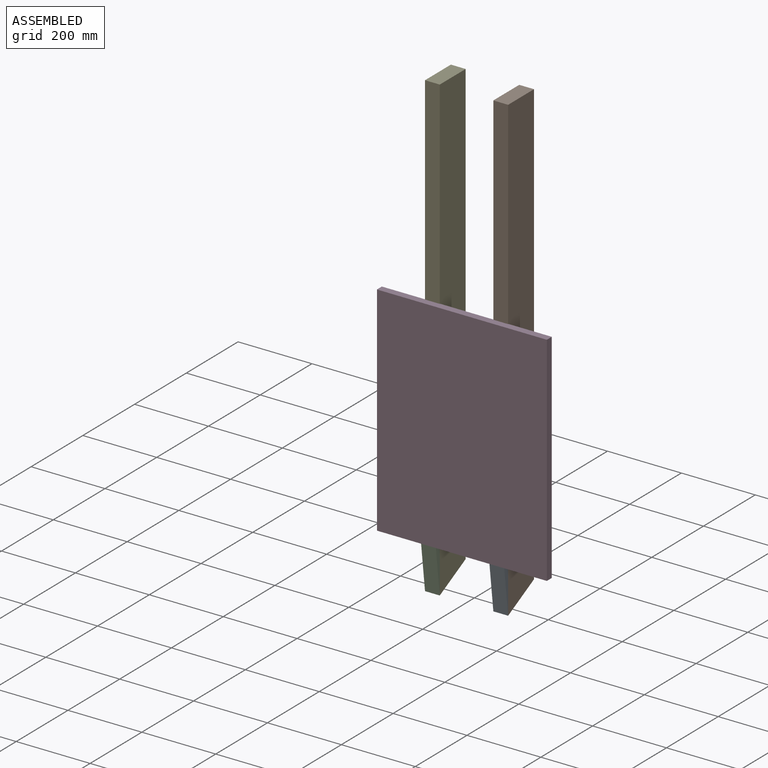
[diagram: assembled view]
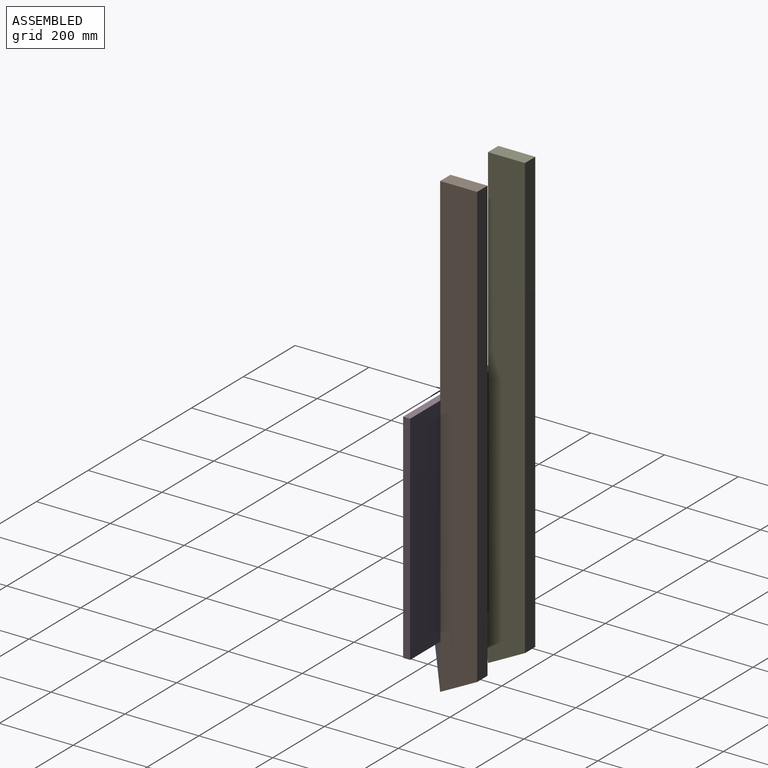
[diagram: assembled view, second angle]
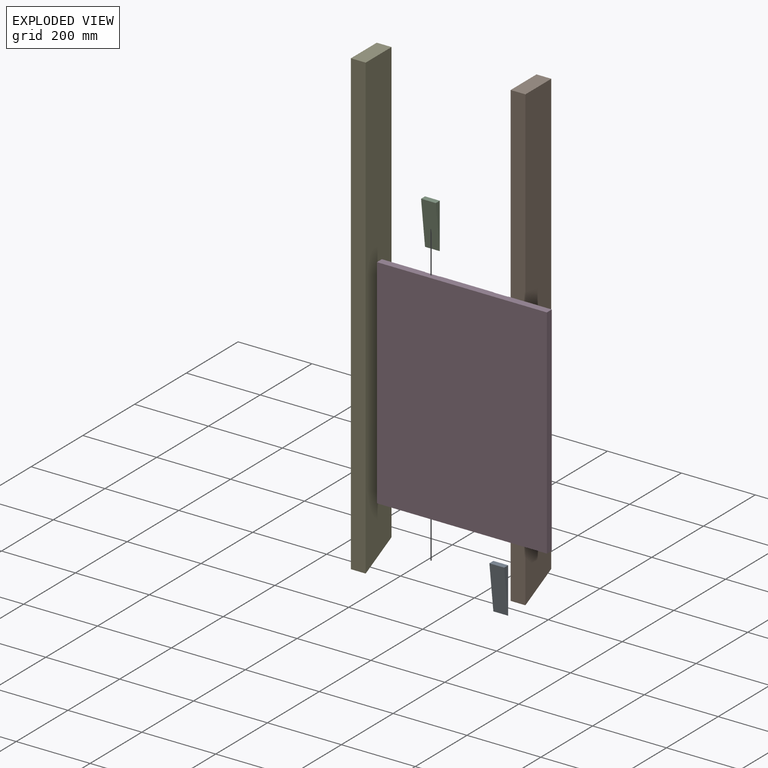
[diagram: exploded view]
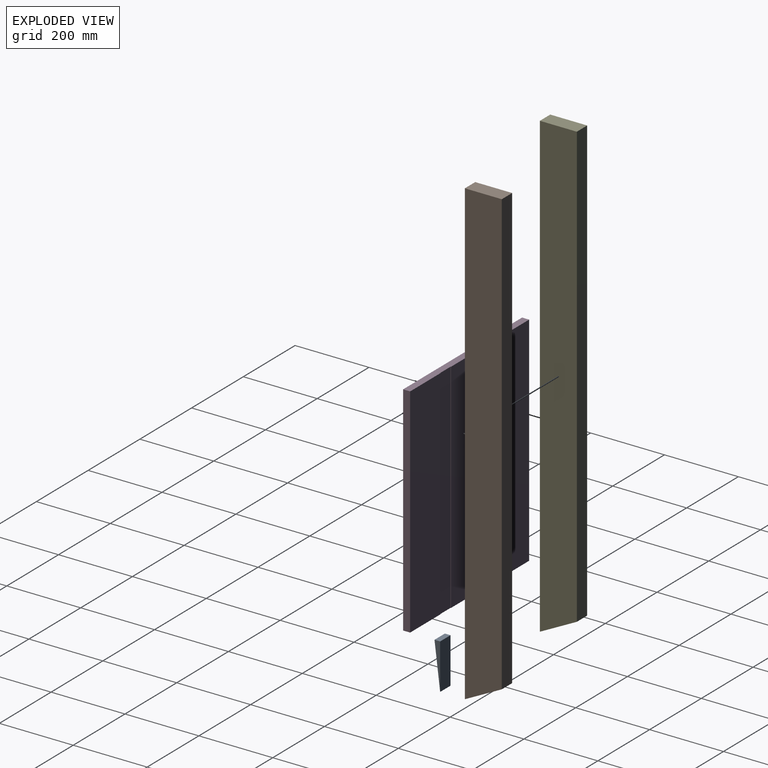
[diagram: exploded view, second angle]
ASSEMBLY  parts=5 mates=3
PART A: 5 faces, bbox 40x15.3x123.5 mm
  f0: plane 40x15.3mm, normal (0,0,1), area 611.9mm2, adj f1,f2,f3,f4
  f1: plane 123.46x40mm, normal (0,-0.99,-0.12), area 4976mm2, adj f0,f2,f3,f4
  f2: plane 123.46x40mm, normal (0,1,0), area 4938.2mm2, adj f0,f1,f3,f4
  f3: plane 123.46x15.3mm, normal (-1,0,0), area 944.3mm2, adj f0,f1,f2
  f4: plane 123.46x15.3mm, normal (1,0,0), area 944.3mm2, adj f0,f1,f2
PART B: 6 faces, bbox 40x100x1250 mm
  f0: plane 1250x40mm, normal (0,-1,0), area 50000mm2, adj f1,f3,f4,f5
  f1: plane 100x50.95mm, normal (0,0.45,-0.89), area 4489.3mm2, adj f0,f2,f4,f5
  f2: plane 1199.05x40mm, normal (0,1,0), area 47961.9mm2, adj f1,f3,f4,f5
  f3: plane 100x40mm, normal (0,0,1), area 4000mm2, adj f0,f2,f4,f5
  f4: plane 1250x100mm, normal (1,0,0), area 122452.4mm2, adj f0,f1,f2,f3
  f5: plane 1250x100mm, normal (-1,0,0), area 122452.4mm2, adj f0,f1,f2,f3
PART C: same geometry as A
PART D: 14 faces, bbox 460x19x590 mm
  f0: plane 590x117.5mm, normal (0,-1,0), area 69325mm2, adj f2,f4,f5,f11
  f1: plane 590x145mm, normal (0,-1,0), area 85550mm2, adj f2,f4,f8,f12
  f2: plane 460x19mm, normal (0,0,1), area 8660mm2, adj f0,f1,f3,f5,f6,f7,f8,f9
  f3: plane 590x19mm, normal (-1,0,0), area 11210mm2, adj f2,f4,f6,f7
  f4: plane 460x19mm, normal (0,0,-1), area 8660mm2, adj f0,f1,f3,f5,f6,f7,f8,f9
  f5: plane 590x19mm, normal (1,0,0), area 11210mm2, adj f0,f2,f4,f7
  f6: plane 590x117.5mm, normal (0,-1,0), area 69325mm2, adj f2,f3,f4,f9
  f7: plane 590x460mm, normal (0,1,0), area 271400mm2, adj f2,f3,f4,f5
  f8: plane 590x1mm, normal (-1,0,0), area 590mm2, adj f1,f2,f4,f10
  f9: plane 590x1mm, normal (1,0,0), area 590mm2, adj f2,f4,f6,f10
  f10: plane 590x40mm, normal (0,-1,0), area 23600mm2, adj f2,f4,f8,f9
  f11: plane 590x1mm, normal (-1,0,0), area 590mm2, adj f0,f2,f4,f13
  f12: plane 590x1mm, normal (1,0,0), area 590mm2, adj f1,f2,f4,f13
  f13: plane 590x40mm, normal (0,-1,0), area 23600mm2, adj f2,f4,f11,f12
PART E: same geometry as B
PLACE A t=(99.68,12.14,195.26)mm
PLACE B t=(99.68,12.14,195.26)mm
PLACE C t=(-85.32,12.14,195.26)mm
PLACE D rot(axis=(0,0,1),180deg) t=(31.35,-87.02,-179.61)mm
PLACE E t=(-85.32,12.14,195.26)mm
MATE fastened D.f4 <-> C.f0  axis (0,0,-1) through (-85.32,-69.02,-484.98)mm
MATE fastened A.f0 <-> D.f4  axis (0,0,1) through (139.68,-69.02,-484.98)mm
MATE fastened B.f0 <-> A.f2  axis (0,-1,0) through (139.68,-69.02,-608.43)mm
